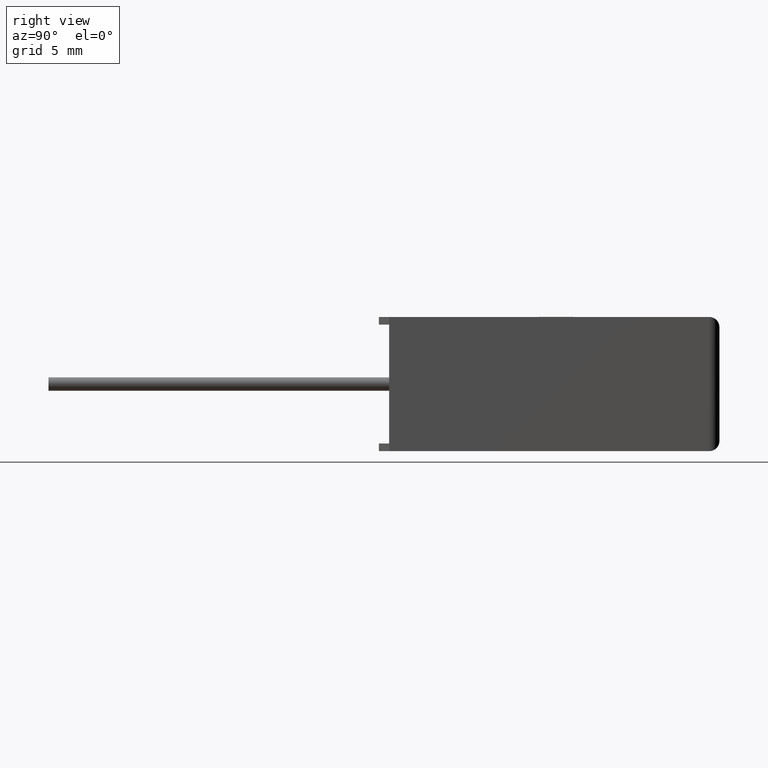
[diagram: clean part render]
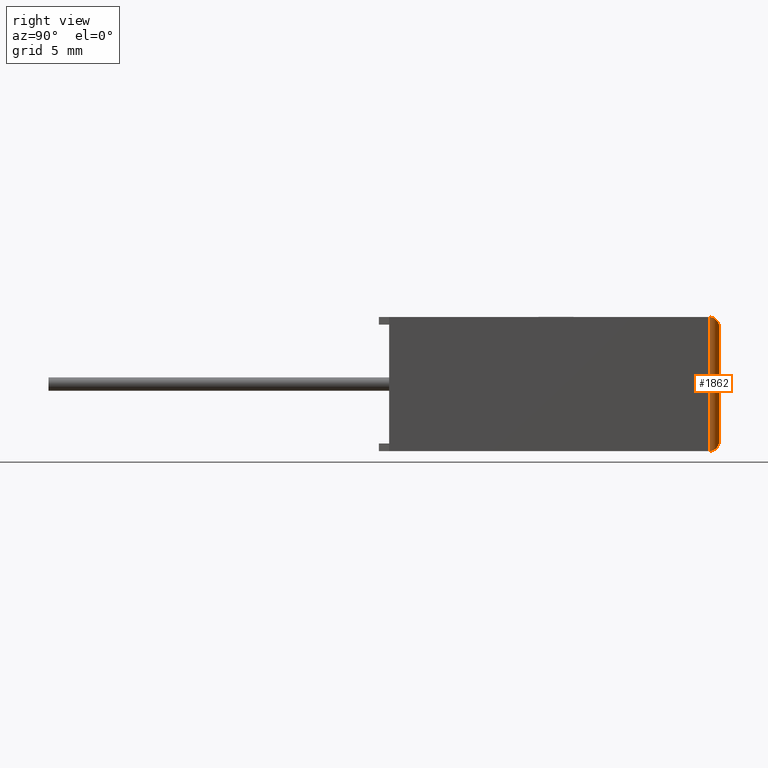
[diagram: same view with one face highlighted and labeled with its STEP entity id]
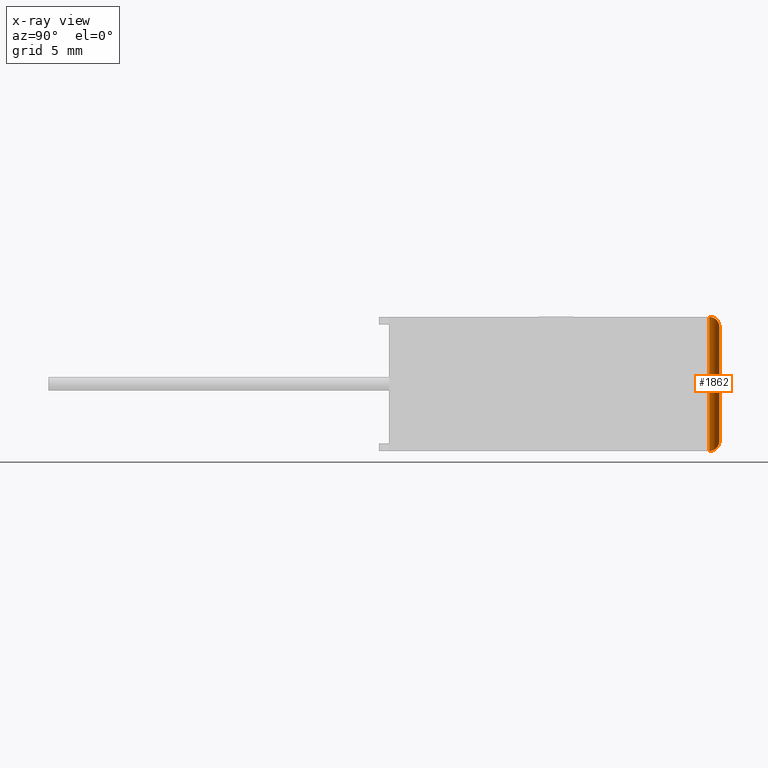
[diagram: x-ray of the same camera — body ghosted, the highlighted face saturated]
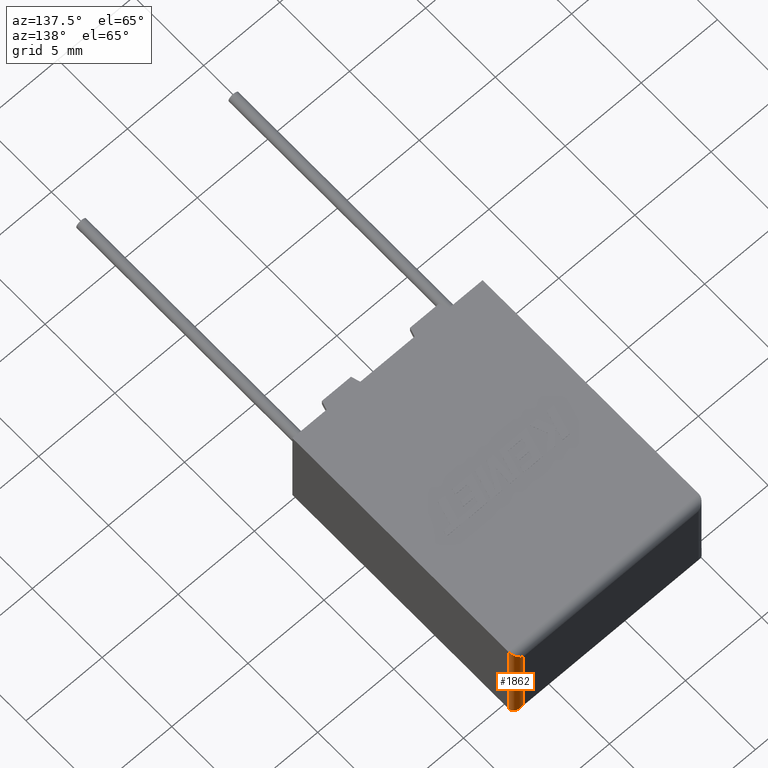
[diagram: same view with one face highlighted and labeled with its STEP entity id]
A machine part, right view. The second image highlights one B-rep face of the part: STEP entity #1862.
The next image is the same camera in x-ray: the body ghosted, the highlighted face saturated — about 0% of this face is hidden behind the body in this view.
A second angle (auxiliary view) of the same face is appended — the face is thin or edge-on in the first view.
In plain terms, the highlighted cylindrical surface (edge-blend (fillet) strip) has radius 0.5 mm, axis along (0, 0, -1).
Its self-contained STEP definition (entity closure, byte-faithful):
#24 = CARTESIAN_POINT ( 'NONE',  ( 12.50000000000000000, 15.50000000000000000, 6.500000000000000000 ) ) ;
#166 = EDGE_CURVE ( 'NONE', #3236, #2927, #2963, .T. ) ;
#238 = CARTESIAN_POINT ( 'NONE',  ( 12.50000000000000000, 15.79289321881345400, -3.252606517456513300E-016 ) ) ;
#245 = DIRECTION ( 'NONE',  ( -1.000000000000000000, 0.0000000000000000000, 0.0000000000000000000 ) ) ;
#328 = ORIENTED_EDGE ( 'NONE', *, *, #166, .T. ) ;
#458 = CARTESIAN_POINT ( 'NONE',  ( 12.29289321881345400, 16.00000000000000000, 0.2071067811865471300 ) ) ;
#540 = CYLINDRICAL_SURFACE ( 'NONE', #1711, 0.5000000000000004400 ) ;
#590 = LINE ( 'NONE', #2621, #3024 ) ;
#733 = ORIENTED_EDGE ( 'NONE', *, *, #1031, .F. ) ;
#794 = CARTESIAN_POINT ( 'NONE',  ( 12.50000000000000000, 15.79289321881345400, 6.500000000000000900 ) ) ;
#878 = EDGE_CURVE ( 'NONE', #2111, #2061, #2097, .T. ) ;
#1031 = EDGE_CURVE ( 'NONE', #3236, #2061, #590, .T. ) ;
#1311 = CARTESIAN_POINT ( 'NONE',  ( 12.00000000000000000, 16.00000000000000000, 0.4999999999999995600 ) ) ;
#1459 = ORIENTED_EDGE ( 'NONE', *, *, #878, .T. ) ;
#1478 = CARTESIAN_POINT ( 'NONE',  ( 12.50000000000000000, 15.50000000000000000, 0.0000000000000000000 ) ) ;
#1560 = CARTESIAN_POINT ( 'NONE',  ( 12.29289321881345400, 16.00000000000000000, 6.292893218813453000 ) ) ;
#1605 = CARTESIAN_POINT ( 'NONE',  ( 12.00000000000000000, 16.00000000000000000, 6.000000000000000000 ) ) ;
#1711 = AXIS2_PLACEMENT_3D ( 'NONE', #2226, #1978, #245 ) ;
#1729 = LINE ( 'NONE', #2857, #2449 ) ;
#1795 = CARTESIAN_POINT ( 'NONE',  ( 12.00000000000000000, 16.00000000000000000, 6.000000000000000000 ) ) ;
#1862 = ADVANCED_FACE ( 'NONE', ( #2003 ), #540, .T. ) ;
#1870 = DIRECTION ( 'NONE',  ( 0.0000000000000000000, 0.0000000000000000000, -1.000000000000000000 ) ) ;
#1974 = CARTESIAN_POINT ( 'NONE',  ( 12.00000000000000000, 16.00000000000000000, 0.4999999999999995600 ) ) ;
#1978 = DIRECTION ( 'NONE',  ( 0.0000000000000000000, 0.0000000000000000000, -1.000000000000000000 ) ) ;
#2003 = FACE_OUTER_BOUND ( 'NONE', #2925, .T. ) ;
#2061 = VERTEX_POINT ( 'NONE', #2356 ) ;
#2097 =( BOUNDED_CURVE ( )  B_SPLINE_CURVE ( 3, ( #1795, #1560, #794, #24 ),
 .UNSPECIFIED., .F., .F. ) 
 B_SPLINE_CURVE_WITH_KNOTS ( ( 4, 4 ),
 ( 1.570796326794896600, 3.141592653589793100 ),
 .UNSPECIFIED. ) 
 CURVE ( )  GEOMETRIC_REPRESENTATION_ITEM ( )  RATIONAL_B_SPLINE_CURVE ( ( 1.000000000000000000, 0.8047378541243649400, 0.8047378541243649400, 1.000000000000000000 ) ) 
 REPRESENTATION_ITEM ( '' )  );
#2111 = VERTEX_POINT ( 'NONE', #1605 ) ;
#2226 = CARTESIAN_POINT ( 'NONE',  ( 12.00000000000000000, 15.50000000000000000, 6.500000000000000000 ) ) ;
#2356 = CARTESIAN_POINT ( 'NONE',  ( 12.50000000000000000, 15.50000000000000000, 6.500000000000000000 ) ) ;
#2385 = ORIENTED_EDGE ( 'NONE', *, *, #2735, .F. ) ;
#2449 = VECTOR ( 'NONE', #1870, 1000.000000000000000 ) ;
#2464 = CARTESIAN_POINT ( 'NONE',  ( 12.50000000000000000, 15.50000000000000000, 0.0000000000000000000 ) ) ;
#2621 = CARTESIAN_POINT ( 'NONE',  ( 12.50000000000000000, 15.50000000000000000, 6.500000000000000000 ) ) ;
#2735 = EDGE_CURVE ( 'NONE', #2111, #2927, #1729, .T. ) ;
#2857 = CARTESIAN_POINT ( 'NONE',  ( 12.00000000000000000, 16.00000000000000000, 6.500000000000000000 ) ) ;
#2925 = EDGE_LOOP ( 'NONE', ( #1459, #733, #328, #2385 ) ) ;
#2927 = VERTEX_POINT ( 'NONE', #1974 ) ;
#2963 =( BOUNDED_CURVE ( )  B_SPLINE_CURVE ( 3, ( #2464, #238, #458, #1311 ),
 .UNSPECIFIED., .F., .F. ) 
 B_SPLINE_CURVE_WITH_KNOTS ( ( 4, 4 ),
 ( 0.0000000000000000000, 1.570796326794896600 ),
 .UNSPECIFIED. ) 
 CURVE ( )  GEOMETRIC_REPRESENTATION_ITEM ( )  RATIONAL_B_SPLINE_CURVE ( ( 1.000000000000000000, 0.8047378541243649400, 0.8047378541243649400, 1.000000000000000000 ) ) 
 REPRESENTATION_ITEM ( '' )  );
#3024 = VECTOR ( 'NONE', #3149, 1000.000000000000000 ) ;
#3149 = DIRECTION ( 'NONE',  ( -0.0000000000000000000, -0.0000000000000000000, 1.000000000000000000 ) ) ;
#3236 = VERTEX_POINT ( 'NONE', #1478 ) ;